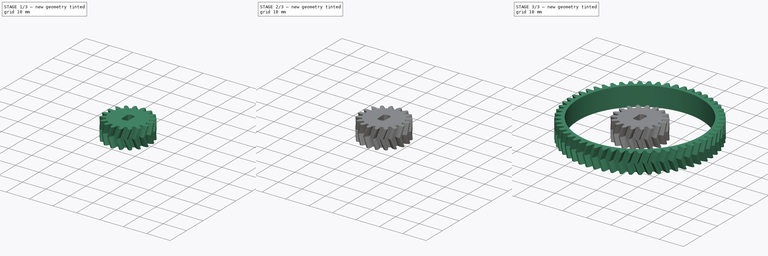
[diagram: build sequence overview — one tinted view per stage of 3, left to right]
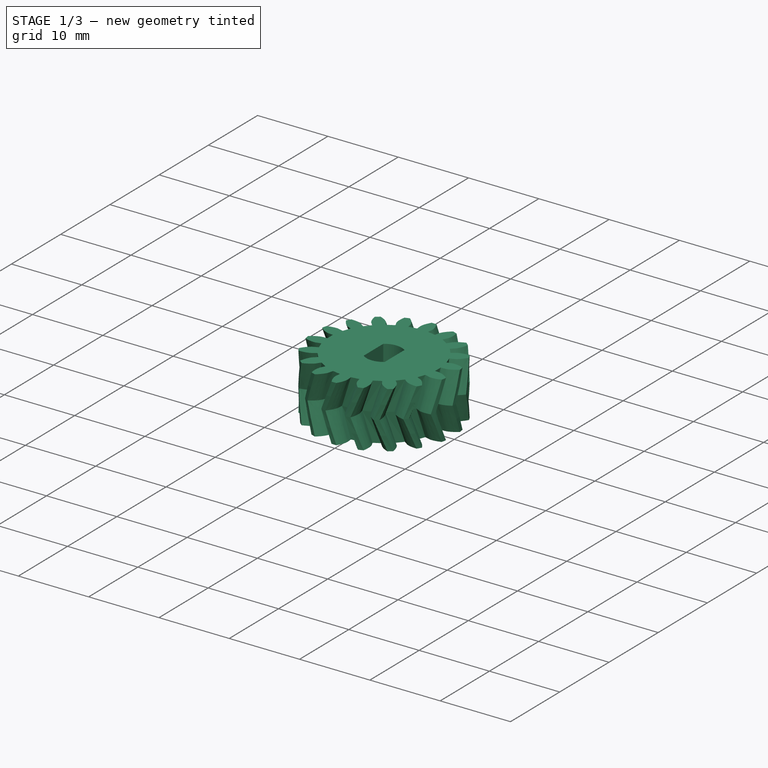
[diagram: stage 1 of 3 — iso view after this stage's code; geometry added in this stage tinted green]
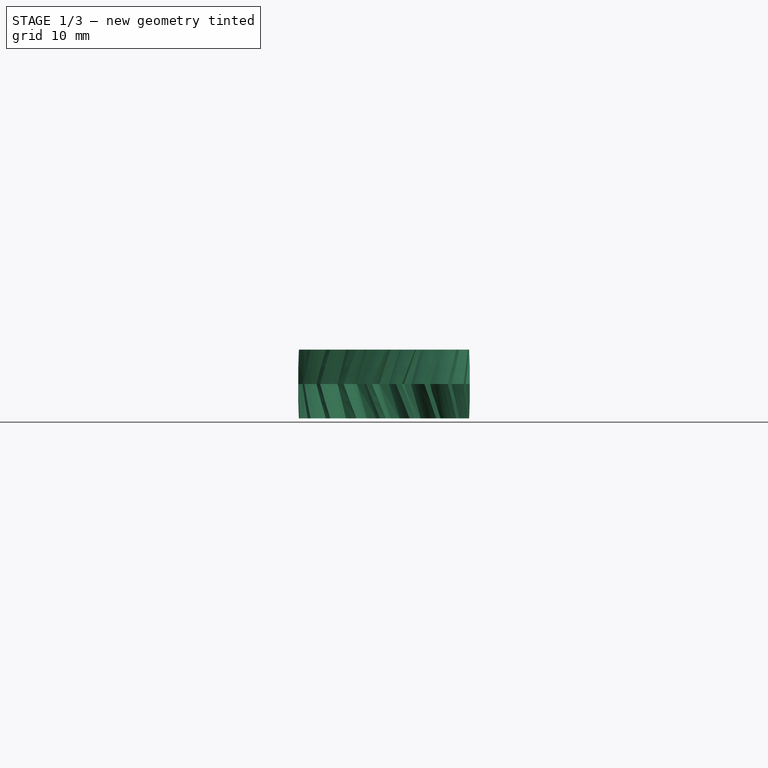
[diagram: stage 1 of 3 — front view after this stage's code; geometry added in this stage tinted green]
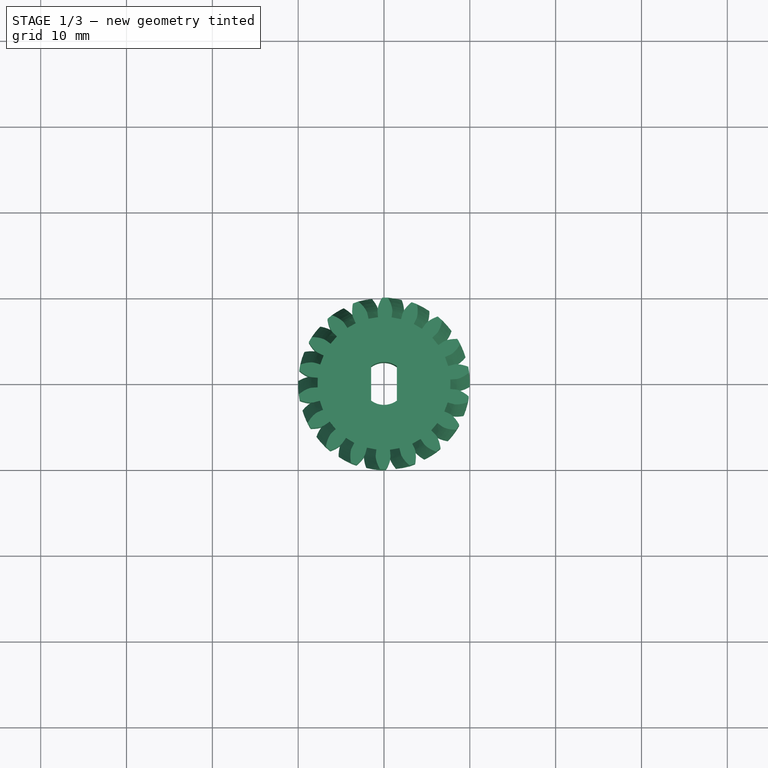
[diagram: stage 1 of 3 — top view after this stage's code; geometry added in this stage tinted green]
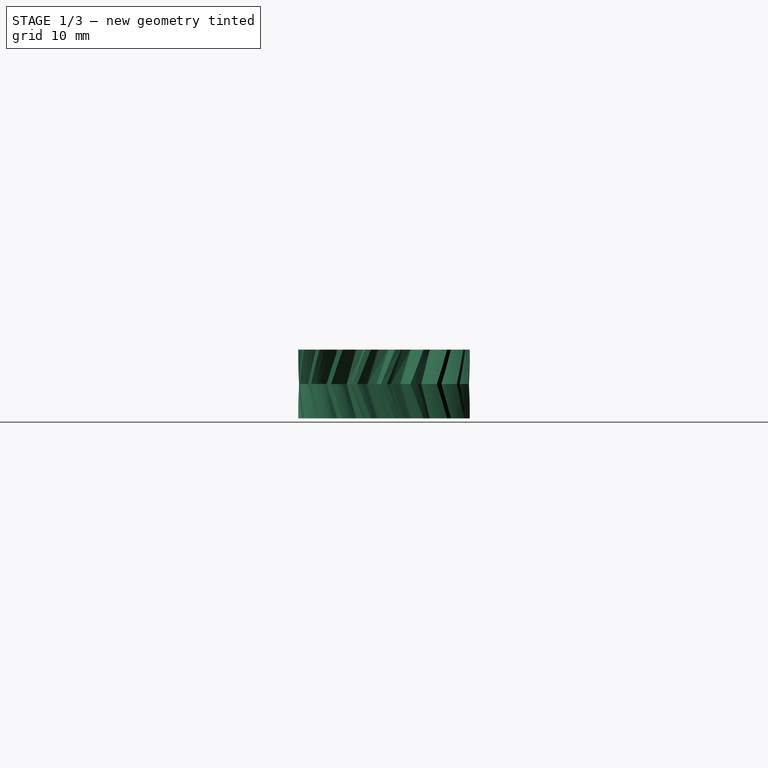
[diagram: stage 1 of 3 — right view after this stage's code; geometry added in this stage tinted green]
FCSTD DOCUMENT  (FreeCAD 0.21R33771 (Git))
Label: Gears
License: All rights reserved
LicenseURL: https://en.wikipedia.org/wiki/All_rights_reserved
objects: Sketcher::SketchObject×3, PartDesign::Pocket×3, PartDesign::FeaturePython×2, PartDesign::Body×2, App::Part×2, PartDesign::Chamfer×2
note: 17 computed .brp shape members not serialized (recipe doc carries the construction recipe); baked Part::Feature solids carry a one-line shape summary decoded from their .brp

FEATURE [PartDesign::Body] Body
  Group = -> [InvoluteGear,Sketch,Pocket]
  Origin = -> Origin002
  Tip = -> Pocket
FEATURE [App::Part] Part  label="Gear"
  Group = -> [Body]
  Origin = -> Origin
FEATURE [PartDesign::FeaturePython] InvoluteGear001  # WARN: FeaturePython — macro-defined, semantics opaque (R4)
  AttacherType = Attacher::AttachEngine3D
  angular_backlash = 0
  backlash = 0
  beta = 20
  clearance = 0.25
  da = 20
  df = 15.5
  double_helix = true
  dw = 18
  head = 0
  head_fillet = 0
  height = 8
  module = 1
  numpoints = 6
  pressure_angle = 20
  properties_from_tool = false
  reversed_backlash = false
  root_fillet = 0
  shift = 0
  simple = false
  teeth = 18
  transverse_pitch = 3.14159
  traverse_module = 1
  undercut = false
  version = 1.2.0
  expr: angular_backlash = backlash / dw * 360 ° / pi
FEATURE [Sketcher::SketchObject] Sketch001
  FullyConstrained = true
  MapMode = 5
  Placement = pos=(5.90169e-09,9.63282e-10,-0.000244536) rot=(1,0,1.2e-05;3.1416rad)
  Support = -> [InvoluteGear001]
  sketch-geometry (4):
    g0: LineSegment StartX=-1.5 StartY=-2 StartZ=0 EndX=-1.5 EndY=2 EndZ=0
    g1: ArcOfCircle CenterX=0 CenterY=0 CenterZ=0 NormalX=0 NormalY=0 NormalZ=1 AngleXU=0 Radius=2.5 StartAngle=0.927295 EndAngle=2.2143
    g2: LineSegment StartX=1.5 StartY=2 StartZ=0 EndX=1.5 EndY=-2 EndZ=0
    g3: ArcOfCircle CenterX=0 CenterY=0 CenterZ=0 NormalX=0 NormalY=0 NormalZ=1 AngleXU=0 Radius=2.5 StartAngle=4.06889 EndAngle=5.35589
  constraints (12):
    c: Coincident(g1,g2)
    c: Coincident(g3,g0)
    c: Coincident(g3,g2)
    c: Coincident(g0,g1)
    c: Equal(g1,g3)
    c: DistanceX(g0,g1) = 3
    c: Vertical(g0)
    c: Vertical(g2)
    c: Coincident(g1,g3)
    c: Coincident(g1,g-1)
    c: Horizontal(g0,g1)
    c: Diameter(g1) = 5
FEATURE [PartDesign::Pocket] Pocket001
  BaseFeature = -> InvoluteGear001
  Direction = (-2.41342e-05,-3.93923e-06,1)
  Length = 5
  Length2 = 5
  Profile = -> Sketch001
  ReferenceAxis = -> Sketch001 [N_Axis]
  Refine = true
  Type = 1
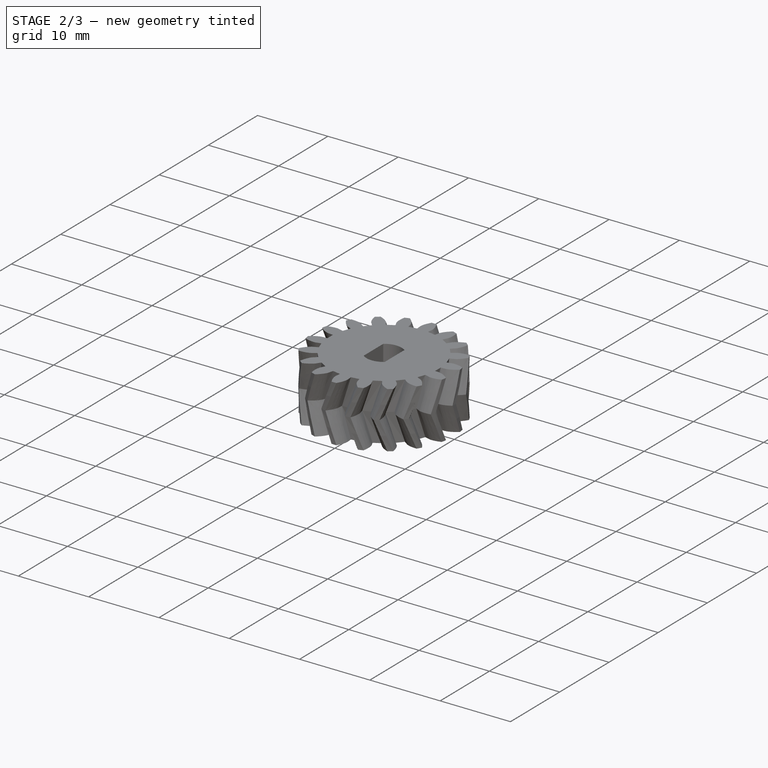
[diagram: stage 2 of 3 — iso view after this stage's code; geometry added in this stage tinted green]
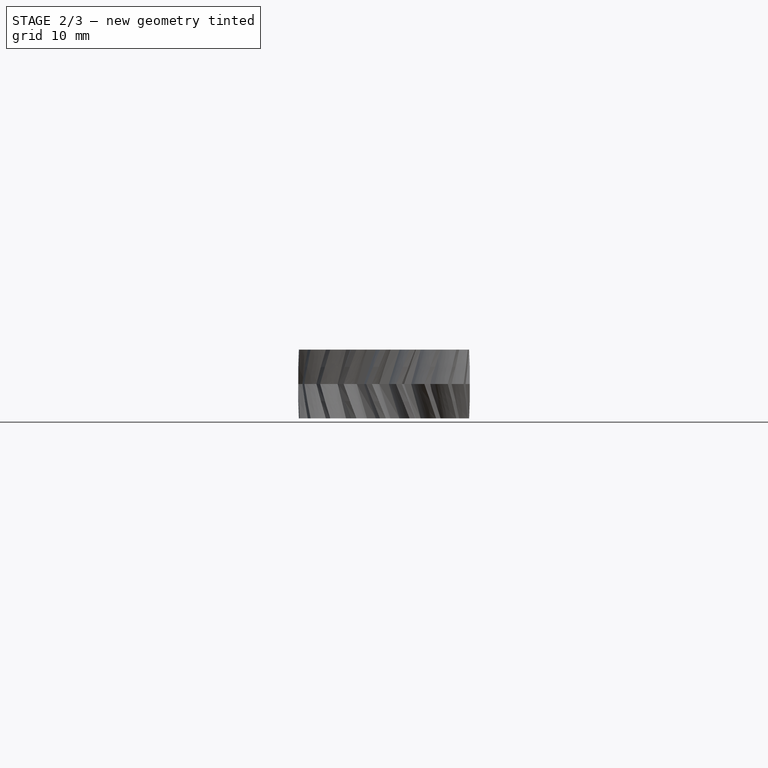
[diagram: stage 2 of 3 — front view after this stage's code; geometry added in this stage tinted green]
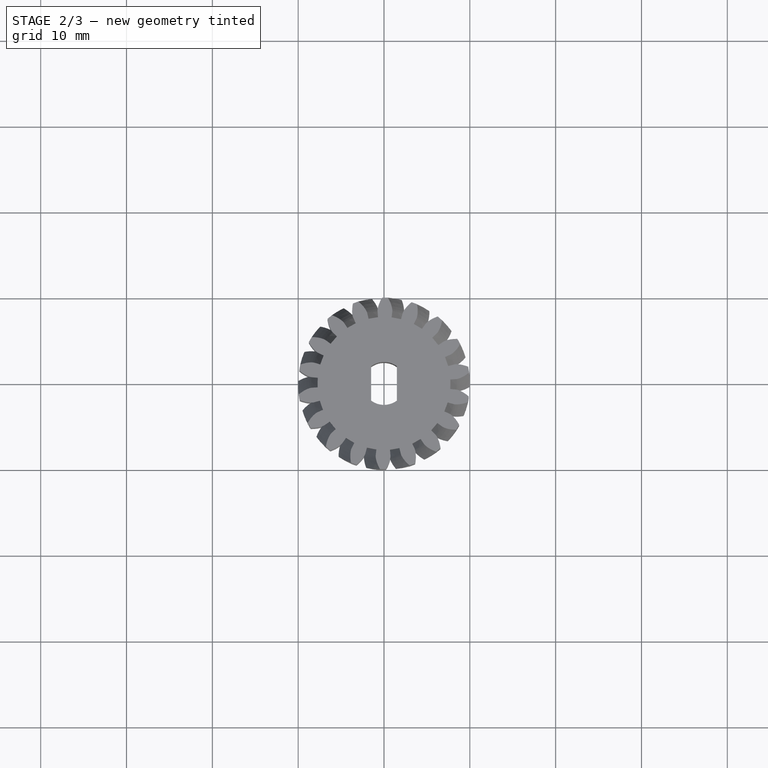
[diagram: stage 2 of 3 — top view after this stage's code; geometry added in this stage tinted green]
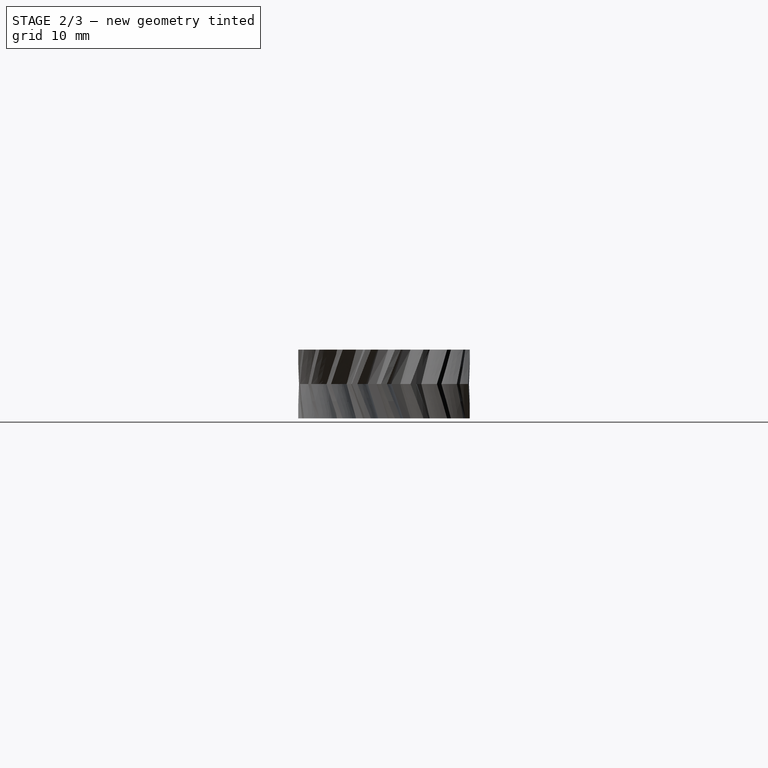
[diagram: stage 2 of 3 — right view after this stage's code; geometry added in this stage tinted green]
FEATURE [Sketcher::SketchObject] Sketch002
  FullyConstrained = true
  MapMode = 5
  Placement = pos=(5.90169e-09,9.63282e-10,-0.000244536) rot=(1,0,1.2e-05;3.1416rad)
  Support = -> [Pocket001]
  sketch-geometry (1):
    g0: Circle CenterX=0 CenterY=0 CenterZ=0 NormalX=0 NormalY=0 NormalZ=1 AngleXU=0 Radius=2.5
  constraints (2):
    c: Coincident(g0,g-1)
    c: Diameter(g0) = 5
FEATURE [PartDesign::Pocket] Pocket002
  BaseFeature = -> Pocket001
  Direction = (-2.41342e-05,-3.93923e-06,1)
  Length = 2
  Length2 = 5
  Profile = -> Sketch002
  ReferenceAxis = -> Sketch002 [N_Axis]
  Refine = true
  Type = 0
FEATURE [PartDesign::Chamfer] Chamfer
  Angle = 45
  Base = -> Pocket002 [Edge235]
  BaseFeature = -> Pocket002
  ChamferType = 0
  FlipDirection = false
  Refine = true
  Size = 0.5
  Size2 = 1
  SupportTransform = false
  UseAllEdges = false
FEATURE [PartDesign::Chamfer] Chamfer001
  Angle = 45
  Base = -> Chamfer [Edge569,Edge566]
  BaseFeature = -> Chamfer
  ChamferType = 0
  FlipDirection = false
  Refine = true
  Size = 0.5
  Size2 = 1
  SupportTransform = false
  UseAllEdges = false
FEATURE [PartDesign::Body] Body001
  Group = -> [InvoluteGear001,Sketch001,Pocket001,Sketch002,Pocket002,Chamfer,Chamfer001]
  Origin = -> Origin004
  Tip = -> Chamfer001
FEATURE [App::Part] Part001  label="Pinion"
  Group = -> [Body001]
  Origin = -> Origin003
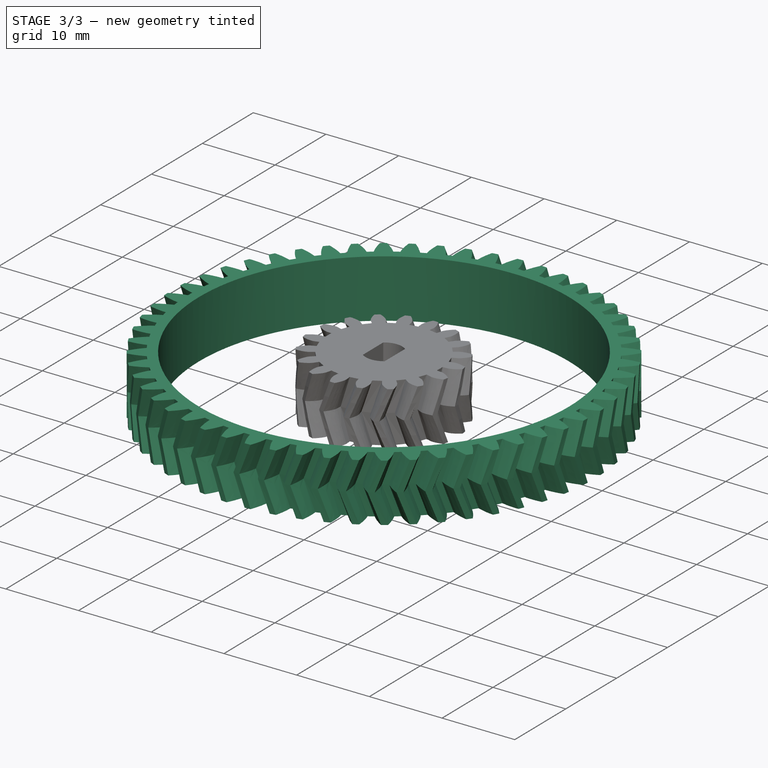
[diagram: stage 3 of 3 — iso view after this stage's code; geometry added in this stage tinted green]
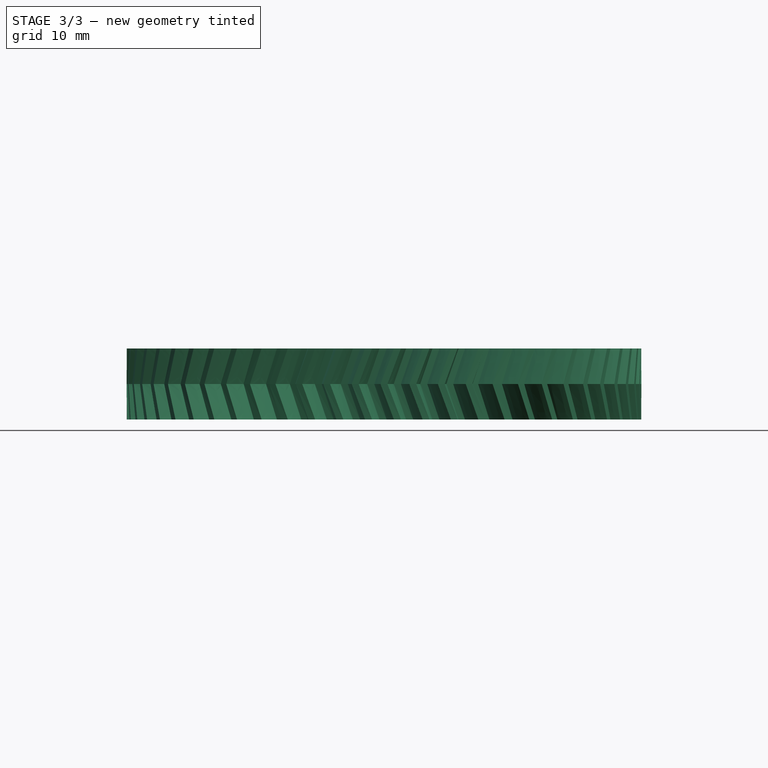
[diagram: stage 3 of 3 — front view after this stage's code; geometry added in this stage tinted green]
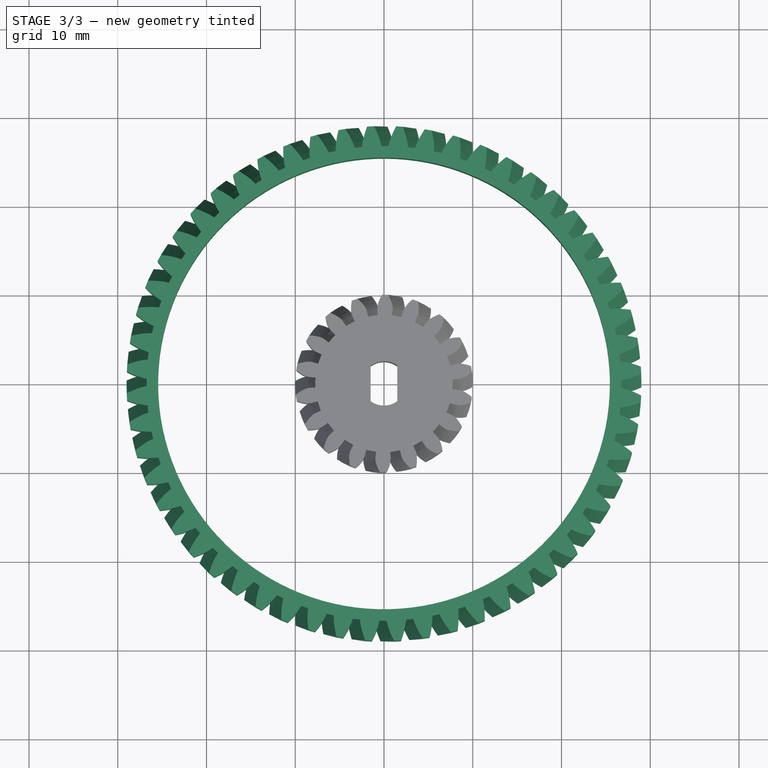
[diagram: stage 3 of 3 — top view after this stage's code; geometry added in this stage tinted green]
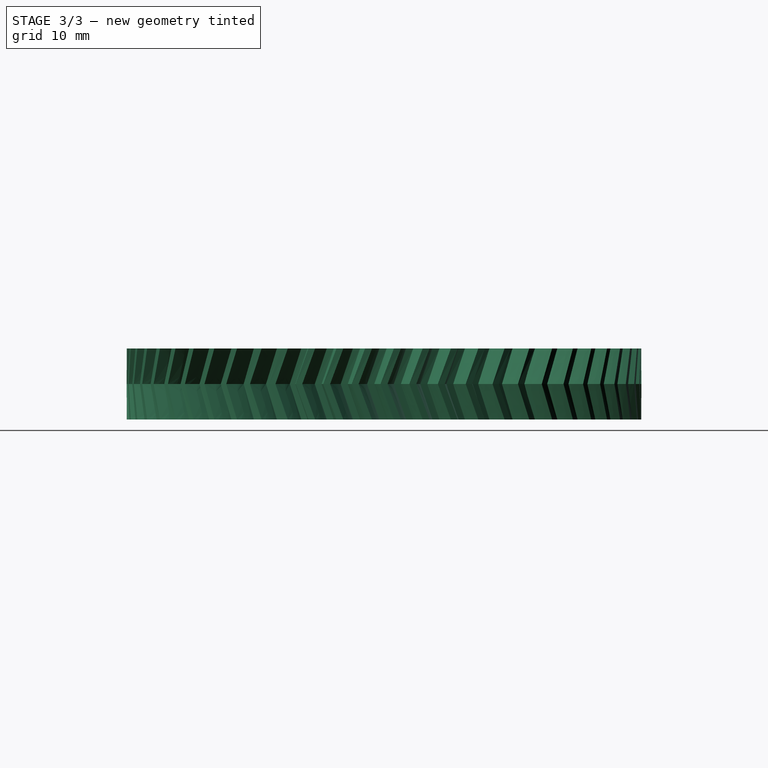
[diagram: stage 3 of 3 — right view after this stage's code; geometry added in this stage tinted green]
FEATURE [PartDesign::FeaturePython] InvoluteGear  # WARN: FeaturePython — macro-defined, semantics opaque (R4)
  AttacherType = Attacher::AttachEngine3D
  angular_backlash = 0
  backlash = 0
  beta = 20
  clearance = 0.25
  da = 58
  df = 53.5
  double_helix = true
  dw = 56
  head = 0
  head_fillet = 0
  height = 8
  module = 1
  numpoints = 6
  pressure_angle = 20
  properties_from_tool = false
  reversed_backlash = false
  root_fillet = 0
  shift = 0
  simple = false
  teeth = 56
  transverse_pitch = 3.14159
  traverse_module = 1
  undercut = false
  version = 1.2.0
  expr: angular_backlash = backlash / dw * 360 ° / pi
FEATURE [Sketcher::SketchObject] Sketch
  FullyConstrained = true
  MapMode = 5
  Placement = pos=(-9.56734e-06,-4.97866e-07,7.99999) rot=(0.051973,-0.998742,0;1e-06rad)
  Support = -> [InvoluteGear]
  sketch-geometry (1):
    g0: Circle CenterX=0 CenterY=0 CenterZ=0 NormalX=0 NormalY=0 NormalZ=1 AngleXU=0 Radius=25.45
  constraints (2):
    c: Coincident(g0,g-1)
    c: Diameter(g0) = 50.9
FEATURE [PartDesign::Pocket] Pocket
  BaseFeature = -> InvoluteGear
  Direction = (1.19592e-06,6.22333e-08,-1)
  Length = 5
  Length2 = 5
  Profile = -> Sketch
  ReferenceAxis = -> Sketch [N_Axis]
  Refine = true
  Type = 1
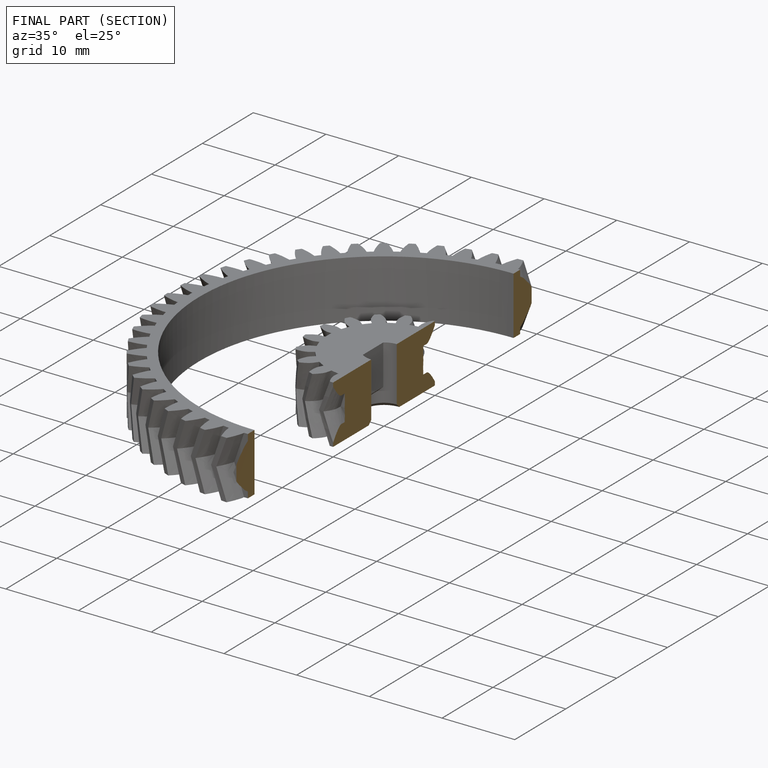
[diagram: finished part — half-section view (interior)]
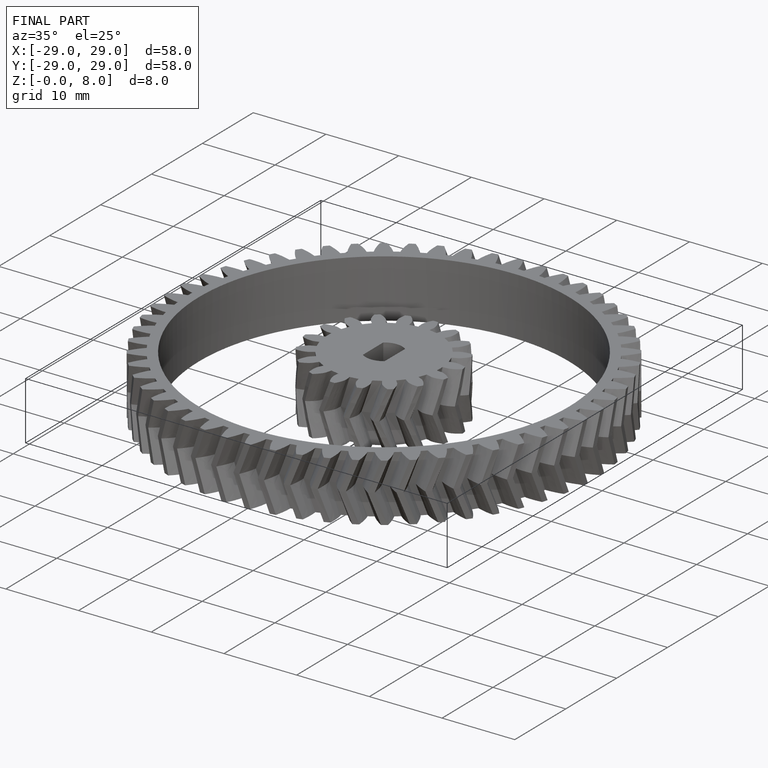
[diagram: finished part — iso view with bounding-box wireframe]
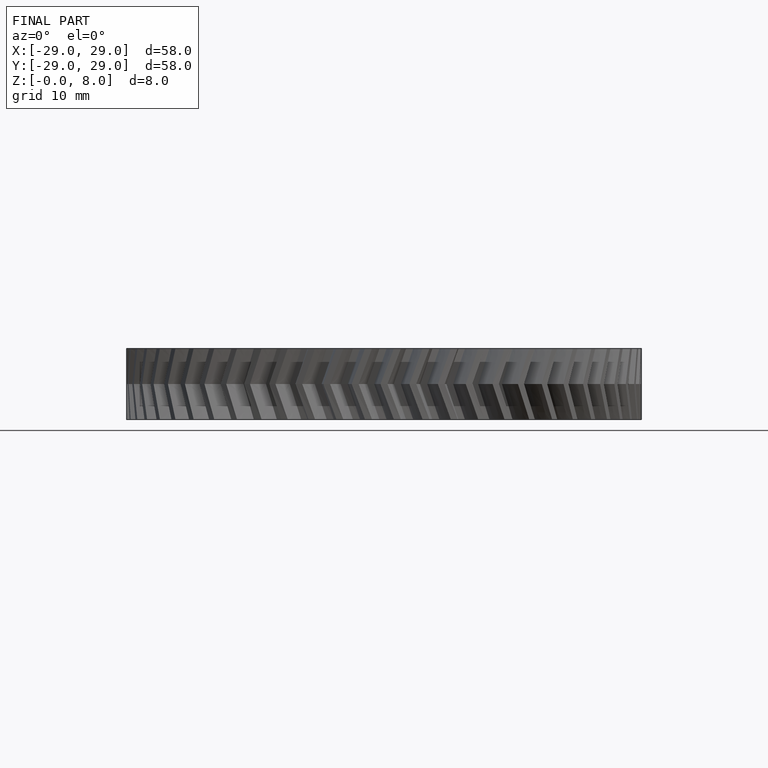
[diagram: finished part — front view with bounding-box wireframe]
